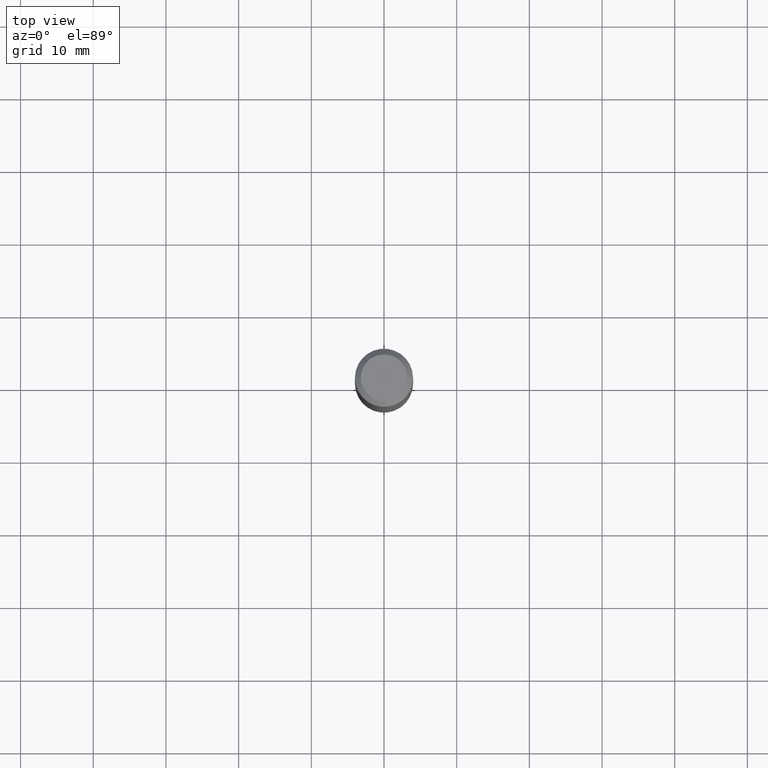
[diagram: clean part render]
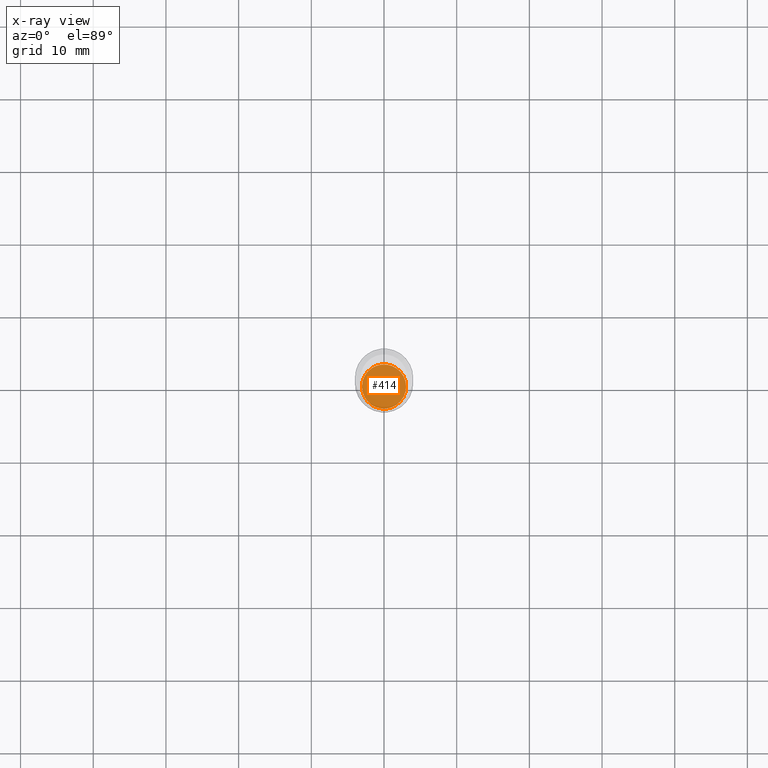
[diagram: x-ray — body ghosted, one internal face saturated and labeled with its STEP entity id]
A machine part, top view, then the same camera in x-ray: the body is ghosted and one INTERNAL B-rep face — a face not visible from any outside direction — is saturated and labeled: STEP entity #414.
In plain terms, the highlighted planar face has unit normal (-0, 0, 1).
Its self-contained STEP definition (entity closure, byte-faithful):
#41 = CIRCLE ( 'NONE', #59, 0.1195999999999999980 ) ;
#56 = EDGE_CURVE ( 'NONE', #487, #255, #41, .T. ) ;
#59 = AXIS2_PLACEMENT_3D ( 'NONE', #109, #463, #347 ) ;
#88 = CARTESIAN_POINT ( 'NONE',  ( 0.1195999999999999980, -1.059385267831786878E-14, -2.794999999999999929 ) ) ;
#95 = FACE_OUTER_BOUND ( 'NONE', #271, .T. ) ;
#109 = CARTESIAN_POINT ( 'NONE',  ( 6.835085313287456474E-29, -9.758690342066593069E-15, -2.794999999999999929 ) ) ;
#165 = PLANE ( 'NONE',  #486 ) ;
#177 = CIRCLE ( 'NONE', #382, 0.1195999999999999980 ) ;
#200 = DIRECTION ( 'NONE',  ( -2.445468806185136597E-29, 3.491481338843145583E-15, 1.000000000000000000 ) ) ;
#244 = EDGE_CURVE ( 'NONE', #255, #487, #177, .T. ) ;
#255 = VERTEX_POINT ( 'NONE', #88 ) ;
#269 = CARTESIAN_POINT ( 'NONE',  ( -0.1195999999999999980, -8.906232002923400186E-15, -2.794999999999999929 ) ) ;
#271 = EDGE_LOOP ( 'NONE', ( #393, #319 ) ) ;
#319 = ORIENTED_EDGE ( 'NONE', *, *, #56, .F. ) ;
#322 = CARTESIAN_POINT ( 'NONE',  ( 6.835085313287456474E-29, -9.758690342066593069E-15, -2.794999999999999929 ) ) ;
#339 = DIRECTION ( 'NONE',  ( 1.000000000000000000, -6.982962677686265922E-15, 4.876176775795935793E-29 ) ) ;
#347 = DIRECTION ( 'NONE',  ( 1.000000000000000000, -6.982962677686261977E-15, 0.000000000000000000 ) ) ;
#365 = DIRECTION ( 'NONE',  ( 1.000000000000000000, -6.982962677686261977E-15, 0.000000000000000000 ) ) ;
#371 = DIRECTION ( 'NONE',  ( -2.438088387897960049E-29, 3.491481338843145188E-15, 1.000000000000000000 ) ) ;
#382 = AXIS2_PLACEMENT_3D ( 'NONE', #322, #200, #365 ) ;
#393 = ORIENTED_EDGE ( 'NONE', *, *, #244, .F. ) ;
#414 = ADVANCED_FACE ( 'NONE', ( #95 ), #165, .F. ) ;
#416 = CARTESIAN_POINT ( 'NONE',  ( 6.835085313287456474E-29, -9.758690342066593069E-15, -2.794999999999999929 ) ) ;
#463 = DIRECTION ( 'NONE',  ( -2.445468806185136597E-29, 3.491481338843145583E-15, 1.000000000000000000 ) ) ;
#486 = AXIS2_PLACEMENT_3D ( 'NONE', #416, #371, #339 ) ;
#487 = VERTEX_POINT ( 'NONE', #269 ) ;